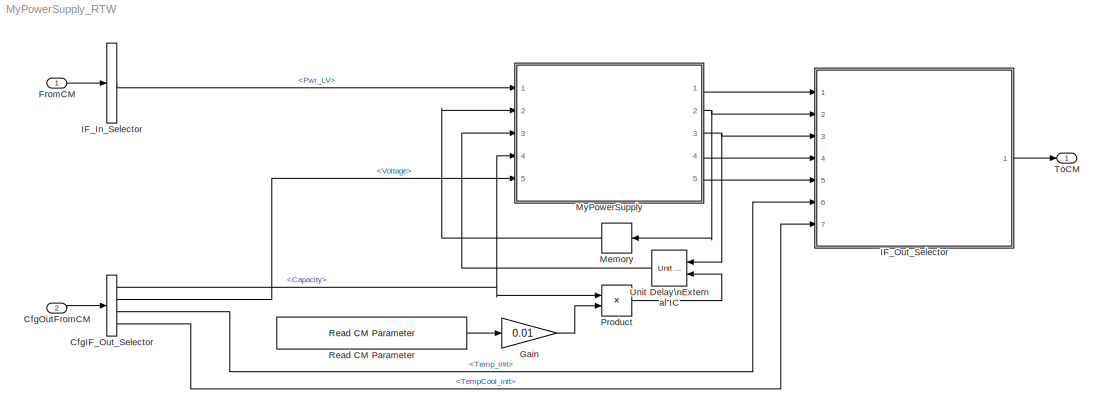
MODEL MyPowerSupply_RTW
KIND model
CONFIG InitFcn = vehicle = 'Car'; if ~length(which('cmself')), cmenv; end\nMyPowerSupply_RTW_bus
CONFIG PreLoadFcn = vehicle = 'Car'; if ~length(which('cmself')), cmenv; end\nMyPowerSupply_RTW_bus
BLOCK [BusSelector] CfgIF_Out_Selector
  OutputSignals = BattLV.Capacity,BattLV.Voltage,BattLV.Temp_init,BattLV.TempCool_init
  Ports = [1, 4]
  SID = 37
BLOCK [Inport] CfgOutFromCM
  OutDataTypeStr = Bus: cmPTPowerSupplyCfgOut
  Port = 2
  SID = 36
BLOCK [Inport] FromCM
  OutDataTypeStr = Bus: cmPTPowerSupplyIn
  SID = 35
BLOCK [Gain] Gain
  Gain = 0.01
  SID = 38
BLOCK [BusSelector] IF_In_Selector
  OutputSignals = Pwr_LV
  Ports = [1, 1]
  SID = 39
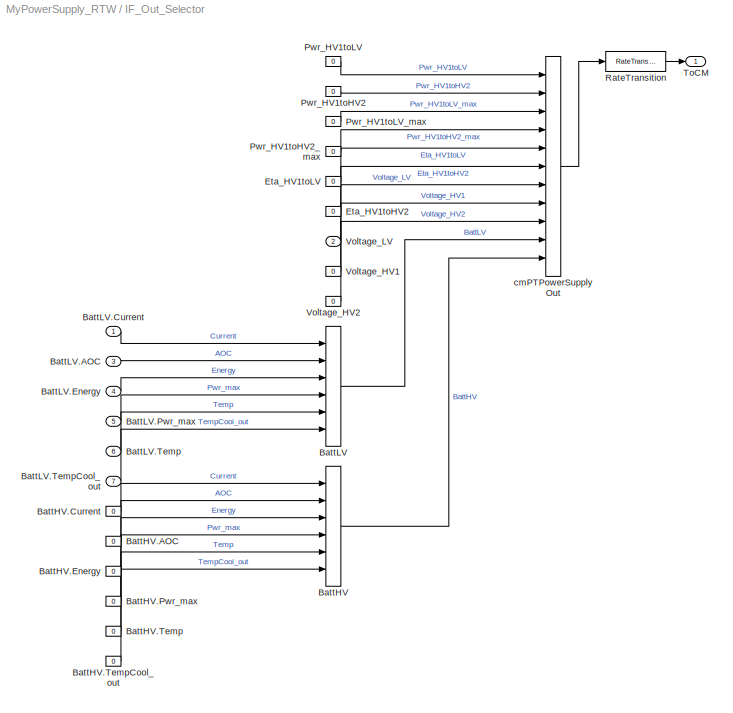
BLOCK [SubSystem] IF_Out_Selector
  OpenFcn = cmSignalSelect('SignalSelection_CB',gcb)
  Ports = [7, 1]
  RequestExecContextInheritance = off
  SID = 40
  UserData = DataTag0
  UserDataPersistent = on
BLOCK [BusCreator] IF_Out_Selector/BattHV
  InheritFromInputs = on
  Inputs = 6
  Ports = [6, 1]
  SID = 48
BLOCK [Constant] IF_Out_Selector/BattHV.AOC
  SID = 49
  Value = 0
BLOCK [Constant] IF_Out_Selector/BattHV.Current
  SID = 50
  Value = 0
BLOCK [Constant] IF_Out_Selector/BattHV.Energy
  SID = 51
  Value = 0
BLOCK [Constant] IF_Out_Selector/BattHV.Pwr_max
  SID = 52
  Value = 0
BLOCK [Constant] IF_Out_Selector/BattHV.Temp
  SID = 53
  Value = 0
BLOCK [Constant] IF_Out_Selector/BattHV.TempCool_out
  SID = 54
  Value = 0
BLOCK [BusCreator] IF_Out_Selector/BattLV
  InheritFromInputs = on
  Inputs = 6
  Ports = [6, 1]
  SID = 55
BLOCK [Inport] IF_Out_Selector/BattLV.AOC
  Port = 3
  SID = 43
BLOCK [Inport] IF_Out_Selector/BattLV.Current
  SID = 41
BLOCK [Inport] IF_Out_Selector/BattLV.Energy
  Port = 4
  SID = 44
BLOCK [Inport] IF_Out_Selector/BattLV.Pwr_max
  Port = 5
  SID = 45
BLOCK [Inport] IF_Out_Selector/BattLV.Temp
  Port = 6
  SID = 46
BLOCK [Inport] IF_Out_Selector/BattLV.TempCool_out
  Port = 7
  SID = 47
BLOCK [Constant] IF_Out_Selector/Eta_HV1toHV2
  SID = 56
  Value = 0
BLOCK [Constant] IF_Out_Selector/Eta_HV1toLV
  SID = 57
  Value = 0
BLOCK [Constant] IF_Out_Selector/Pwr_HV1toHV2
  SID = 58
  Value = 0
BLOCK [Constant] IF_Out_Selector/Pwr_HV1toHV2_max
  SID = 59
  Value = 0
BLOCK [Constant] IF_Out_Selector/Pwr_HV1toLV
  SID = 60
  Value = 0
BLOCK [Constant] IF_Out_Selector/Pwr_HV1toLV_max
  SID = 61
  Value = 0
BLOCK [RateTransition] IF_Out_Selector/RateTransition
  OutPortSampleTime = str2num(get_param(bdroot,'FixedStep'))
  SID = 62
BLOCK [Outport] IF_Out_Selector/ToCM
  SID = 66
BLOCK [Constant] IF_Out_Selector/Voltage_HV1
  SID = 63
  Value = 0
BLOCK [Constant] IF_Out_Selector/Voltage_HV2
  SID = 64
  Value = 0
BLOCK [Inport] IF_Out_Selector/Voltage_LV
  Port = 2
  SID = 42
BLOCK [BusCreator] IF_Out_Selector/cmPTPowerSupplyOut
  InheritFromInputs = on
  Inputs = 11
  Ports = [11, 1]
  SID = 65
BLOCK [Memory] Memory
  SID = 67
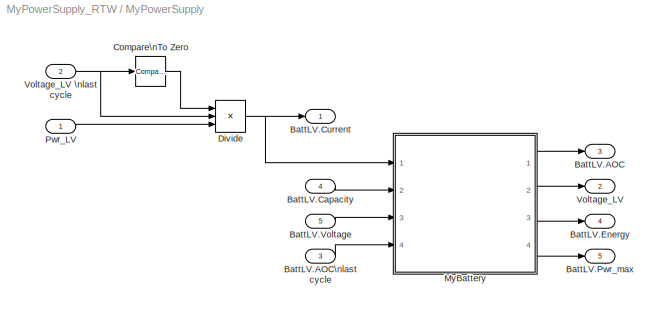
BLOCK [SubSystem] MyPowerSupply
  Ports = [5, 5]
  RequestExecContextInheritance = off
  SID = 68
BLOCK [Outport] MyPowerSupply/BattLV.AOC
  Port = 3
  SID = 106
  VectorParamsAs1DForOutWhenUnconnected = off
BLOCK [Inport] MyPowerSupply/BattLV.AOC\nlast cycle
  Port = 3
  SID = 71
BLOCK [Inport] MyPowerSupply/BattLV.Capacity
  Port = 4
  SID = 72
BLOCK [Outport] MyPowerSupply/BattLV.Current
  SID = 104
  VectorParamsAs1DForOutWhenUnconnected = off
BLOCK [Outport] MyPowerSupply/BattLV.Energy
  Port = 4
  SID = 107
  VectorParamsAs1DForOutWhenUnconnected = off
BLOCK [Outport] MyPowerSupply/BattLV.Pwr_max
  Port = 5
  SID = 108
  VectorParamsAs1DForOutWhenUnconnected = off
BLOCK [Inport] MyPowerSupply/BattLV.Voltage
  Port = 5
  SID = 73
BLOCK [Reference] MyPowerSupply/Compare\nTo Zero  REF=simulink/Logic and Bit\nOperations/Compare\nTo Zero
  OutDataTypeStr = uint8
  Ports = [1, 1]
  RTWMemSecDataConstants = Inherit from model
  RTWMemSecDataInternal = Inherit from model
  RTWMemSecDataParameters = Inherit from model
  RTWMemSecFuncExecute = Inherit from model
  RTWMemSecFuncInitTerm = Inherit from model
  SID = 74
  SourceBlock = simulink/Logic and Bit\nOperations/Compare\nTo Zero
  SourceProductBaseCode = SL
  SourceType = Compare To Zero
  ZeroCross = off
  relop = >
BLOCK [Product] MyPowerSupply/Divide
  Inputs = */*
  Ports = [3, 1]
  SID = 75
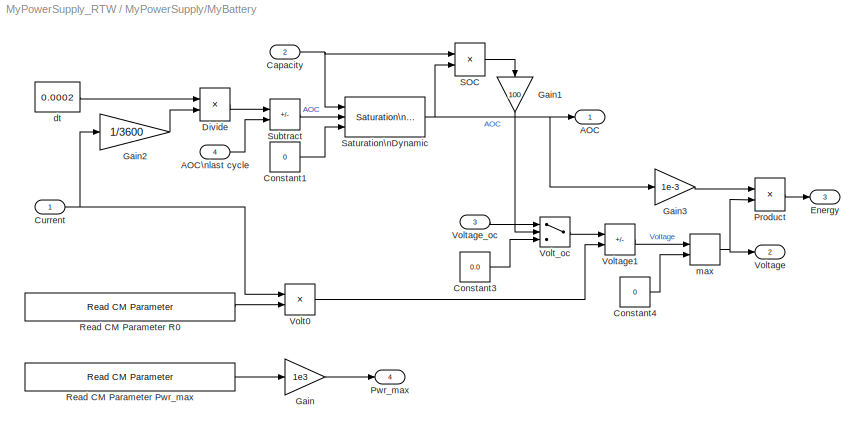
BLOCK [SubSystem] MyPowerSupply/MyBattery
  Ports = [4, 4]
  RequestExecContextInheritance = off
  SID = 76
BLOCK [Outport] MyPowerSupply/MyBattery/AOC
  SID = 100
  VectorParamsAs1DForOutWhenUnconnected = off
BLOCK [Inport] MyPowerSupply/MyBattery/AOC\nlast cycle
  Port = 4
  SID = 80
BLOCK [Inport] MyPowerSupply/MyBattery/Capacity
  Port = 2
  SID = 78
BLOCK [Constant] MyPowerSupply/MyBattery/Constant1
  SID = 81
  Value = 0
BLOCK [Constant] MyPowerSupply/MyBattery/Constant3
  SID = 82
  Value = 0.0
BLOCK [Constant] MyPowerSupply/MyBattery/Constant4
  SID = 83
  Value = 0
BLOCK [Inport] MyPowerSupply/MyBattery/Current
  SID = 77
BLOCK [Product] MyPowerSupply/MyBattery/Divide
  Inputs = **
  Ports = [2, 1]
  SID = 84
BLOCK [Outport] MyPowerSupply/MyBattery/Energy
  Port = 3
  SID = 102
  VectorParamsAs1DForOutWhenUnconnected = off
BLOCK [Gain] MyPowerSupply/MyBattery/Gain
  Gain = 1e3
  SID = 85
BLOCK [Gain] MyPowerSupply/MyBattery/Gain1
  Gain = 100
  NameLocation = left
  SID = 86
BLOCK [Gain] MyPowerSupply/MyBattery/Gain2
  Gain = 1/3600
  NameLocation = top
  SID = 87
BLOCK [Gain] MyPowerSupply/MyBattery/Gain3
  Gain = 1e-3
  SID = 88
BLOCK [Product] MyPowerSupply/MyBattery/Product
  Ports = [2, 1]
  RndMeth = Zero
  SID = 89
BLOCK [Outport] MyPowerSupply/MyBattery/Pwr_max
  Port = 4
  SID = 103
  VectorParamsAs1DForOutWhenUnconnected = off
BLOCK [Reference] MyPowerSupply/MyBattery/Read CM Parameter Pwr_max  REF=CarMaker4SL/Read CM Parameter
  MultiThreadCoSim = auto
  Ports = [0, 1]
  SID = 90
  SourceBlock = CarMaker4SL/Read CM Parameter
  SourceProductName = CarMaker4SL
  SourceType = Read CarMaker Info File Parameter
  xdefaults = 100
  xfile = Vehicle
  xkey = PowerTrain.PowerSupply.BattLV.Pwr_max
  xmuxed = on
  xnout = 1
  xstime = Continuous
BLOCK [Reference] MyPowerSupply/MyBattery/Read CM Parameter R0  REF=CarMaker4SL/Read CM Parameter
  MultiThreadCoSim = auto
  Ports = [0, 1]
  SID = 91
  SourceBlock = CarMaker4SL/Read CM Parameter
  SourceProductName = CarMaker4SL
  SourceType = Read CarMaker Info File Parameter
  xdefaults = 0.0012
  xfile = Vehicle
  xkey = PowerTrain.PowerSupply.BattLV.R0
  xmuxed = on
  xnout = 1
  xstime = Continuous
BLOCK [Product] MyPowerSupply/MyBattery/SOC
  Inputs = /*
  Ports = [2, 1]
  SID = 92
BLOCK [Reference] MyPowerSupply/MyBattery/Saturation\nDynamic  REF=simulink/Discontinuities/Saturation\nDynamic
  DoSatur = off
  LockScale = off
  OutDataType = sfix(16)
  OutDataTypeStr = Inherit: Same as second input
  OutMax = []
  OutMin = []
  OutScaling = 2^-10
  OutputDataTypeScalingMode = Same as second input
  Ports = [3, 1]
  RTWMemSecDataConstants = Inherit from model
  RTWMemSecDataInternal = Inherit from model
  RTWMemSecDataParameters = Inherit from model
  RTWMemSecFuncExecute = Inherit from model
  RTWMemSecFuncInitTerm = Inherit from model
  RndMeth = Floor
  SID = 93
  SourceBlock = simulink/Discontinuities/Saturation\nDynamic
  SourceProductBaseCode = SL
  SourceType = Saturation Dynamic
BLOCK [Sum] MyPowerSupply/MyBattery/Subtract
  IconShape = rectangular
  Inputs = -+
  Ports = [2, 1]
  SID = 94
BLOCK [Product] MyPowerSupply/MyBattery/Volt0
  Ports = [2, 1]
  RndMeth = Zero
  SID = 95
BLOCK [Switch] MyPowerSupply/MyBattery/Volt_oc
  Criteria = u2 > Threshold
  InputSameDT = off
  SID = 96
  SaturateOnIntegerOverflow = off
  Threshold = 1e-2
BLOCK [Outport] MyPowerSupply/MyBattery/Voltage
  Port = 2
  SID = 101
  VectorParamsAs1DForOutWhenUnconnected = off
BLOCK [Sum] MyPowerSupply/MyBattery/Voltage1
  IconShape = rectangular
  Inputs = +-
  Ports = [2, 1]
  SID = 97
BLOCK [Inport] MyPowerSupply/MyBattery/Voltage_oc
  Port = 3
  SID = 79
BLOCK [Constant] MyPowerSupply/MyBattery/dt
  SID = 98
  Value = 0.0002
BLOCK [MinMax] MyPowerSupply/MyBattery/max
  Function = max
  Inputs = 2
  Ports = [2, 1]
  SID = 99
BLOCK [Inport] MyPowerSupply/Pwr_LV
  SID = 69
BLOCK [Outport] MyPowerSupply/Voltage_LV
  Port = 2
  SID = 105
  VectorParamsAs1DForOutWhenUnconnected = off
BLOCK [Inport] MyPowerSupply/Voltage_LV \nlast cycle
  Port = 2
  SID = 70
BLOCK [Product] Product
  Ports = [2, 1]
  RndMeth = Zero
  SID = 109
BLOCK [Reference] Read CM Parameter  REF=CarMaker4SL/Read CM Parameter
  MultiThreadCoSim = auto
  Ports = [0, 1]
  SID = 110
  SourceBlock = CarMaker4SL/Read CM Parameter
  SourceProductName = CarMaker4SL
  SourceType = Read CarMaker Info File Parameter
  xdefaults = 70.0
  xfile = Vehicle
  xkey = PowerTrain.PowerSupply.BattLV.SOC
  xmuxed = on
  xnout = 1
  xstime = Continuous
BLOCK [Outport] ToCM
  OutDataTypeStr = Bus: cmPTPowerSupplyOut
  SID = 112
BLOCK [Reference] Unit Delay\nExternal IC  REF=simulink_need_slupdate/Unit Delay\nExternal IC
  Ports = [2, 1]
  RTWMemSecDataConstants = Inherit from model
  RTWMemSecDataInternal = Inherit from model
  RTWMemSecDataParameters = Inherit from model
  RTWMemSecFuncExecute = Inherit from model
  RTWMemSecFuncInitTerm = Inherit from model
  SID = 111
  SourceBlock = simulink_need_slupdate/Unit Delay\nExternal IC
  SourceProductBaseCode = SL
  SourceType = Unit Delay External Initial Condition
  tsamp = -1
NET CfgIF_Out_Selector:1 -> MyPowerSupply:4, Product:1
LINE CfgIF_Out_Selector:2 -> MyPowerSupply:5
LINE CfgIF_Out_Selector:3 -> IF_Out_Selector:6
LINE CfgIF_Out_Selector:4 -> IF_Out_Selector:7
LINE CfgOutFromCM:1 -> CfgIF_Out_Selector:1
LINE FromCM:1 -> IF_In_Selector:1
LINE Gain:1 -> Product:2
LINE IF_In_Selector:1 -> MyPowerSupply:1
LINE IF_Out_Selector/BattHV.AOC:1 -> IF_Out_Selector/BattHV:2
LINE IF_Out_Selector/BattHV.Current:1 -> IF_Out_Selector/BattHV:1
LINE IF_Out_Selector/BattHV.Energy:1 -> IF_Out_Selector/BattHV:3
LINE IF_Out_Selector/BattHV.Pwr_max:1 -> IF_Out_Selector/BattHV:4
LINE IF_Out_Selector/BattHV.Temp:1 -> IF_Out_Selector/BattHV:5
LINE IF_Out_Selector/BattHV.TempCool_out:1 -> IF_Out_Selector/BattHV:6
LINE IF_Out_Selector/BattHV:1 -> IF_Out_Selector/cmPTPowerSupplyOut:11
LINE IF_Out_Selector/BattLV.AOC:1 -> IF_Out_Selector/BattLV:2
LINE IF_Out_Selector/BattLV.Current:1 -> IF_Out_Selector/BattLV:1
LINE IF_Out_Selector/BattLV.Energy:1 -> IF_Out_Selector/BattLV:3
LINE IF_Out_Selector/BattLV.Pwr_max:1 -> IF_Out_Selector/BattLV:4
LINE IF_Out_Selector/BattLV.Temp:1 -> IF_Out_Selector/BattLV:5
LINE IF_Out_Selector/BattLV.TempCool_out:1 -> IF_Out_Selector/BattLV:6
LINE IF_Out_Selector/BattLV:1 -> IF_Out_Selector/cmPTPowerSupplyOut:10
LINE IF_Out_Selector/Eta_HV1toHV2:1 -> IF_Out_Selector/cmPTPowerSupplyOut:6
LINE IF_Out_Selector/Eta_HV1toLV:1 -> IF_Out_Selector/cmPTPowerSupplyOut:5
LINE IF_Out_Selector/Pwr_HV1toHV2:1 -> IF_Out_Selector/cmPTPowerSupplyOut:2
LINE IF_Out_Selector/Pwr_HV1toHV2_max:1 -> IF_Out_Selector/cmPTPowerSupplyOut:4
LINE IF_Out_Selector/Pwr_HV1toLV:1 -> IF_Out_Selector/cmPTPowerSupplyOut:1
LINE IF_Out_Selector/Pwr_HV1toLV_max:1 -> IF_Out_Selector/cmPTPowerSupplyOut:3
LINE IF_Out_Selector/RateTransition:1 -> IF_Out_Selector/ToCM:1
LINE IF_Out_Selector/Voltage_HV1:1 -> IF_Out_Selector/cmPTPowerSupplyOut:8
LINE IF_Out_Selector/Voltage_HV2:1 -> IF_Out_Selector/cmPTPowerSupplyOut:9
LINE IF_Out_Selector/Voltage_LV:1 -> IF_Out_Selector/cmPTPowerSupplyOut:7
LINE IF_Out_Selector/cmPTPowerSupplyOut:1 -> IF_Out_Selector/RateTransition:1
LINE IF_Out_Selector:1 -> ToCM:1
LINE Memory:1 -> MyPowerSupply:2
LINE MyPowerSupply/BattLV.AOC\nlast cycle:1 -> MyPowerSupply/MyBattery:4
LINE MyPowerSupply/BattLV.Capacity:1 -> MyPowerSupply/MyBattery:2
LINE MyPowerSupply/BattLV.Voltage:1 -> MyPowerSupply/MyBattery:3
LINE MyPowerSupply/Compare\nTo Zero:1 -> MyPowerSupply/Divide:1
NET MyPowerSupply/Divide:1 -> MyPowerSupply/BattLV.Current:1, MyPowerSupply/MyBattery:1
LINE MyPowerSupply/MyBattery/AOC\nlast cycle:1 -> MyPowerSupply/MyBattery/Subtract:2
NET MyPowerSupply/MyBattery/Capacity:1 -> MyPowerSupply/MyBattery/SOC:1, MyPowerSupply/MyBattery/Saturation\nDynamic:1
LINE MyPowerSupply/MyBattery/Constant1:1 -> MyPowerSupply/MyBattery/Saturation\nDynamic:3
LINE MyPowerSupply/MyBattery/Constant3:1 -> MyPowerSupply/MyBattery/Volt_oc:3
LINE MyPowerSupply/MyBattery/Constant4:1 -> MyPowerSupply/MyBattery/max:2
NET MyPowerSupply/MyBattery/Current:1 -> MyPowerSupply/MyBattery/Gain2:1, MyPowerSupply/MyBattery/Volt0:1
LINE MyPowerSupply/MyBattery/Divide:1 -> MyPowerSupply/MyBattery/Subtract:1
LINE MyPowerSupply/MyBattery/Gain1:1 -> MyPowerSupply/MyBattery/Volt_oc:2
LINE MyPowerSupply/MyBattery/Gain2:1 -> MyPowerSupply/MyBattery/Divide:2
LINE MyPowerSupply/MyBattery/Gain3:1 -> MyPowerSupply/MyBattery/Product:1
LINE MyPowerSupply/MyBattery/Gain:1 -> MyPowerSupply/MyBattery/Pwr_max:1
LINE MyPowerSupply/MyBattery/Product:1 -> MyPowerSupply/MyBattery/Energy:1
LINE MyPowerSupply/MyBattery/Read CM Parameter Pwr_max:1 -> MyPowerSupply/MyBattery/Gain:1
LINE MyPowerSupply/MyBattery/Read CM Parameter R0:1 -> MyPowerSupply/MyBattery/Volt0:2
LINE MyPowerSupply/MyBattery/SOC:1 -> MyPowerSupply/MyBattery/Gain1:1
NET MyPowerSupply/MyBattery/Saturation\nDynamic:1 -> MyPowerSupply/MyBattery/AOC:1, MyPowerSupply/MyBattery/Gain3:1, MyPowerSupply/MyBattery/SOC:2
LINE MyPowerSupply/MyBattery/Subtract:1 -> MyPowerSupply/MyBattery/Saturation\nDynamic:2
LINE MyPowerSupply/MyBattery/Volt0:1 -> MyPowerSupply/MyBattery/Voltage1:2
LINE MyPowerSupply/MyBattery/Volt_oc:1 -> MyPowerSupply/MyBattery/Voltage1:1
LINE MyPowerSupply/MyBattery/Voltage1:1 -> MyPowerSupply/MyBattery/max:1
LINE MyPowerSupply/MyBattery/Voltage_oc:1 -> MyPowerSupply/MyBattery/Volt_oc:1
LINE MyPowerSupply/MyBattery/dt:1 -> MyPowerSupply/MyBattery/Divide:1
NET MyPowerSupply/MyBattery/max:1 -> MyPowerSupply/MyBattery/Product:2, MyPowerSupply/MyBattery/Voltage:1
LINE MyPowerSupply/MyBattery:1 -> MyPowerSupply/BattLV.AOC:1
LINE MyPowerSupply/MyBattery:2 -> MyPowerSupply/Voltage_LV:1
LINE MyPowerSupply/MyBattery:3 -> MyPowerSupply/BattLV.Energy:1
LINE MyPowerSupply/MyBattery:4 -> MyPowerSupply/BattLV.Pwr_max:1
LINE MyPowerSupply/Pwr_LV:1 -> MyPowerSupply/Divide:3
NET MyPowerSupply/Voltage_LV \nlast cycle:1 -> MyPowerSupply/Compare\nTo Zero:1, MyPowerSupply/Divide:2
LINE MyPowerSupply:1 -> IF_Out_Selector:1
NET MyPowerSupply:2 -> IF_Out_Selector:2, Memory:1
NET MyPowerSupply:3 -> IF_Out_Selector:3, Unit Delay\nExternal IC:1
LINE MyPowerSupply:4 -> IF_Out_Selector:4
LINE MyPowerSupply:5 -> IF_Out_Selector:5
LINE Product:1 -> Unit Delay\nExternal IC:2
LINE Read CM Parameter:1 -> Gain:1
LINE Unit Delay\nExternal IC:1 -> MyPowerSupply:3
note: NET lines group one-source signal fan-out (src -> all destinations, sorted); 1:1 wires keep LINE
